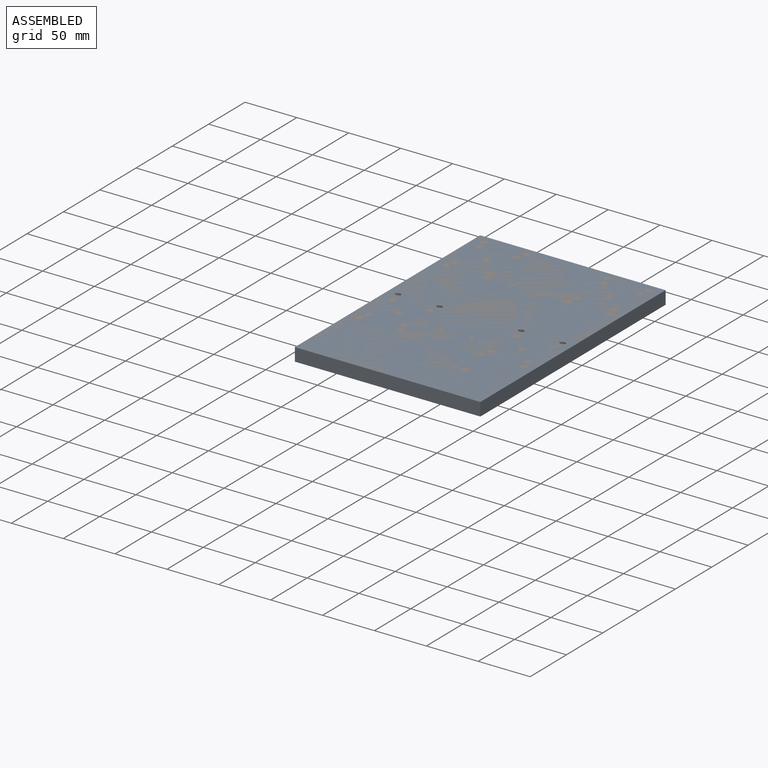
[diagram: assembled view]
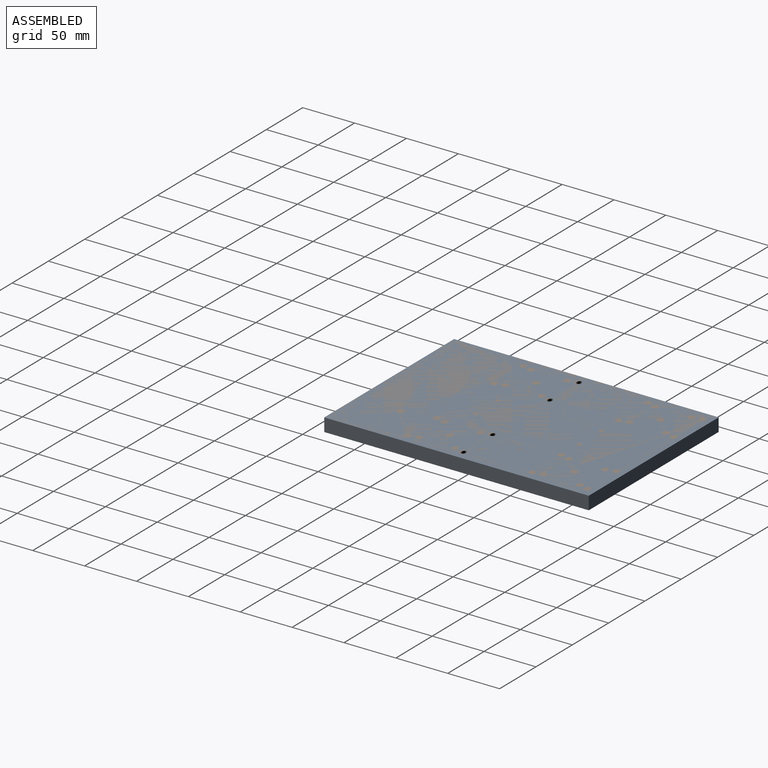
[diagram: assembled view, second angle]
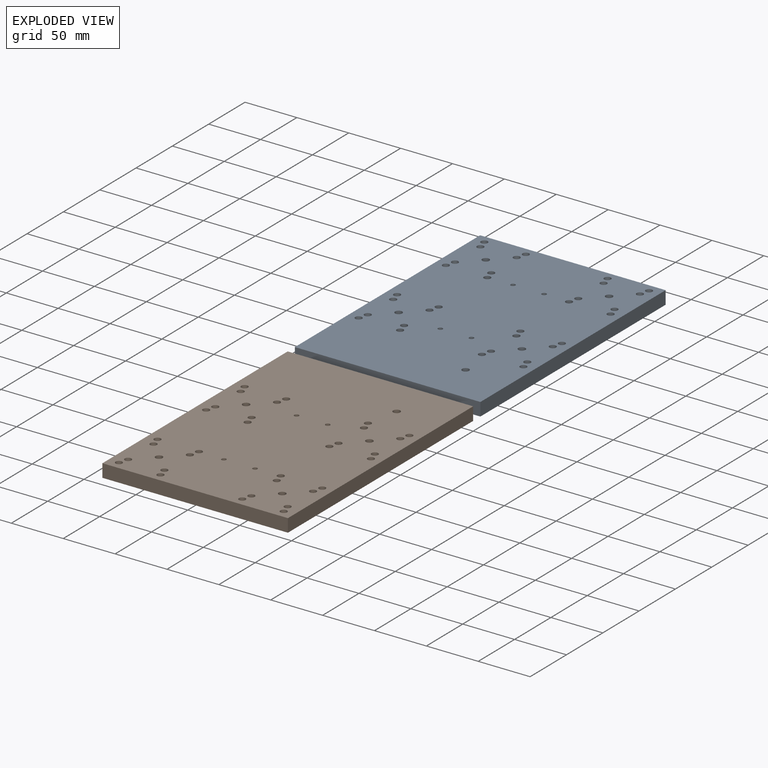
[diagram: exploded view]
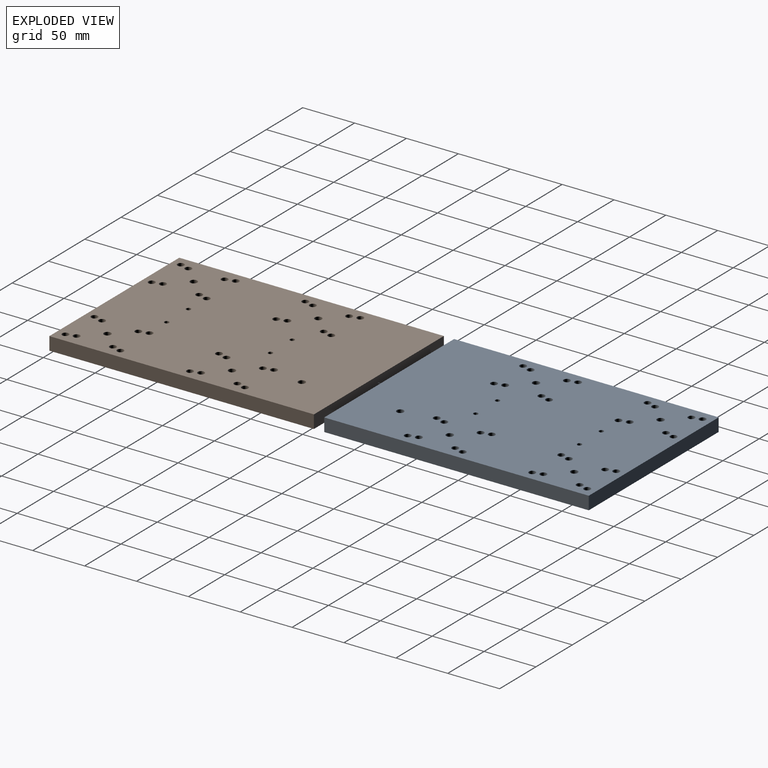
[diagram: exploded view, second angle]
ASSEMBLY  parts=2 mates=2
PART A: 47 faces, bbox 178.8x255x12.7 mm
  f0: plane 178.8x12.7mm, normal (0,1,0), area 2270.8mm2, adj f1,f44,f45,f46
  f1: plane 255x12.7mm, normal (-1,0,0), area 3238.5mm2, adj f0,f2,f45,f46
  f2: plane 178.8x12.7mm, normal (0,-1,0), area 2270.8mm2, adj f1,f44,f45,f46
  f3: cylinder r=2.18mm len=12.7mm, axis (0,0,-1), area 174.2mm2, adj f45,f46
  f4: cylinder r=2.18mm len=12.7mm, axis (0,0,-1), area 174.2mm2, adj f45,f46
  f5: cylinder r=2.18mm len=12.7mm, axis (0,0,-1), area 174.2mm2, adj f45,f46
  f6: cylinder r=2.18mm len=12.7mm, axis (0,0,-1), area 174.2mm2, adj f45,f46
  f7: cylinder r=3.17mm len=12.7mm, axis (0,0,-1), area 253.4mm2, adj f45,f46
  f8: cylinder r=3.17mm len=12.7mm, axis (0,0,-1), area 253.4mm2, adj f45,f46
  f9: cylinder r=3.17mm len=12.7mm, axis (0,0,-1), area 253.4mm2, adj f45,f46
  f10: cylinder r=3.17mm len=12.7mm, axis (0,0,-1), area 253.4mm2, adj f45,f46
  f11: cylinder r=3.17mm len=12.7mm, axis (0,0,-1), area 253.4mm2, adj f45,f46
  f12: cylinder r=3.17mm len=12.7mm, axis (0,0,-1), area 253.4mm2, adj f45,f46
  f13: cylinder r=3.17mm len=12.7mm, axis (0,0,-1), area 253.4mm2, adj f45,f46
  f14: cylinder r=3.17mm len=12.7mm, axis (0,0,-1), area 253.4mm2, adj f45,f46
  f15: cylinder r=3.17mm len=12.7mm, axis (0,0,-1), area 253.4mm2, adj f45,f46
  f16: cylinder r=3.17mm len=12.7mm, axis (0,0,-1), area 253.4mm2, adj f45,f46
  f17: cylinder r=3.17mm len=12.7mm, axis (0,0,-1), area 253.4mm2, adj f45,f46
  f18: cylinder r=3.17mm len=12.7mm, axis (0,0,-1), area 253.4mm2, adj f45,f46
  f19: cylinder r=3.17mm len=12.7mm, axis (0,0,-1), area 253.4mm2, adj f45,f46
  f20: cylinder r=3.17mm len=12.7mm, axis (0,0,-1), area 253.4mm2, adj f45,f46
  f21: cylinder r=3.17mm len=12.7mm, axis (0,0,-1), area 253.4mm2, adj f45,f46
  f22: cylinder r=3.17mm len=12.7mm, axis (0,0,-1), area 253.4mm2, adj f45,f46
  f23: cylinder r=3.17mm len=12.7mm, axis (0,0,-1), area 253.4mm2, adj f45,f46
  f24: cylinder r=3.17mm len=12.7mm, axis (0,0,-1), area 253.4mm2, adj f45,f46
  f25: cylinder r=3.17mm len=12.7mm, axis (0,0,-1), area 253.4mm2, adj f45,f46
  f26: cylinder r=3.17mm len=12.7mm, axis (0,0,-1), area 253.4mm2, adj f45,f46
  f27: cylinder r=3.17mm len=12.7mm, axis (0,0,-1), area 253.4mm2, adj f45,f46
  f28: cylinder r=3.17mm len=12.7mm, axis (0,0,-1), area 253.4mm2, adj f45,f46
  f29: cylinder r=3.17mm len=12.7mm, axis (0,0,-1), area 253.4mm2, adj f45,f46
  f30: cylinder r=3.17mm len=12.7mm, axis (0,0,-1), area 253.4mm2, adj f45,f46
  f31: cylinder r=3.37mm len=12.7mm, axis (0,0,-1), area 269.2mm2, adj f45,f46
  f32: cylinder r=3.37mm len=12.7mm, axis (0,0,-1), area 269.2mm2, adj f45,f46
  f33: cylinder r=3.37mm len=12.7mm, axis (0,0,-1), area 269.2mm2, adj f45,f46
  f34: cylinder r=3.37mm len=12.7mm, axis (0,0,-1), area 269.2mm2, adj f45,f46
  f35: cylinder r=3.37mm len=12.7mm, axis (0,0,-1), area 269.2mm2, adj f45,f46
  f36: cylinder r=3.17mm len=12.7mm, axis (0,0,-1), area 253.4mm2, adj f45,f46
  f37: cylinder r=3.17mm len=12.7mm, axis (0,0,-1), area 253.4mm2, adj f45,f46
  f38: cylinder r=3.17mm len=12.7mm, axis (0,0,-1), area 253.4mm2, adj f45,f46
  f39: cylinder r=3.17mm len=12.7mm, axis (0,0,-1), area 253.4mm2, adj f45,f46
  f40: cylinder r=3.17mm len=12.7mm, axis (0,0,-1), area 253.4mm2, adj f45,f46
  f41: cylinder r=3.17mm len=12.7mm, axis (0,0,-1), area 253.4mm2, adj f45,f46
  f42: cylinder r=3.17mm len=12.7mm, axis (0,0,-1), area 253.4mm2, adj f45,f46
  f43: cylinder r=3.17mm len=12.7mm, axis (0,0,-1), area 253.4mm2, adj f45,f46
  f44: plane 255x12.7mm, normal (1,0,0), area 3238.5mm2, adj f0,f2,f45,f46
  f45: plane 255x178.8mm, normal (0,0,1), area 44342mm2, adj f0,f1,f2,f3,f4,f5,f6,f7
  f46: plane 255x178.8mm, normal (0,0,-1), area 44342mm2, adj f0,f1,f2,f3,f4,f5,f6,f7
PART B: same geometry as A
PLACE A rot(axis=(1,0,0),180deg) t=(5.47,-5.21,-18.96)mm
PLACE B t=(5.47,-5.21,-31.66)mm
MATE planar B.f2 <-> A.f0  axis (0,-1,0) through (5.47,-132.71,-25.31)mm
MATE planar A.f44 <-> B.f44  axis (1,0,0) through (94.87,-5.21,-25.31)mm
